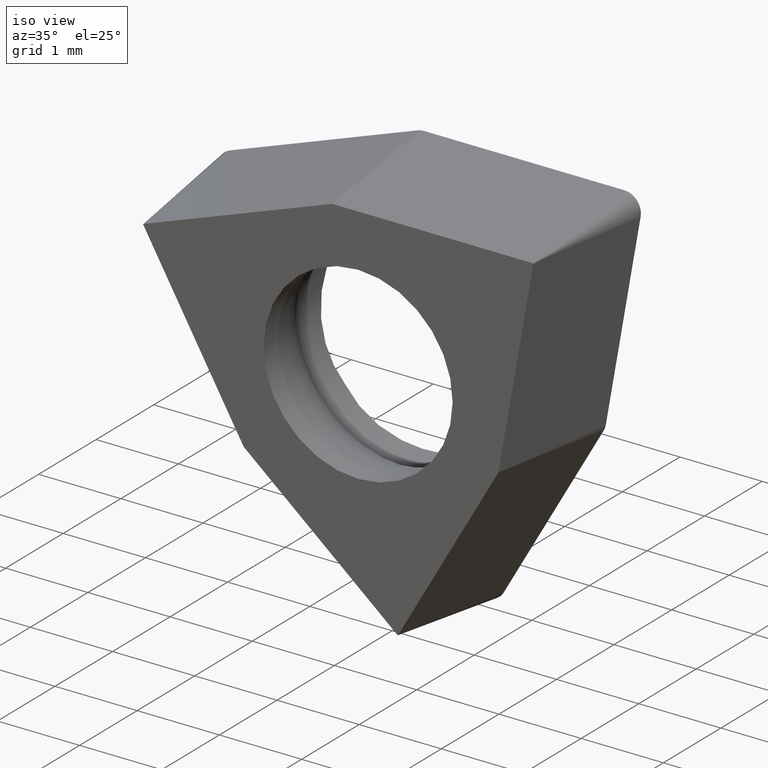
[diagram: clean part render]
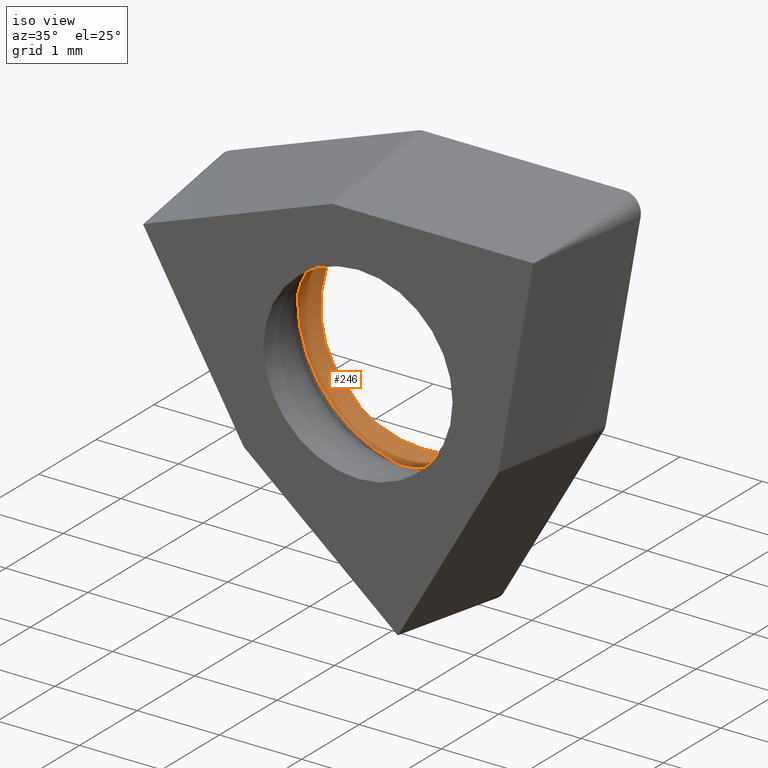
[diagram: same view with one face highlighted and labeled with its STEP entity id]
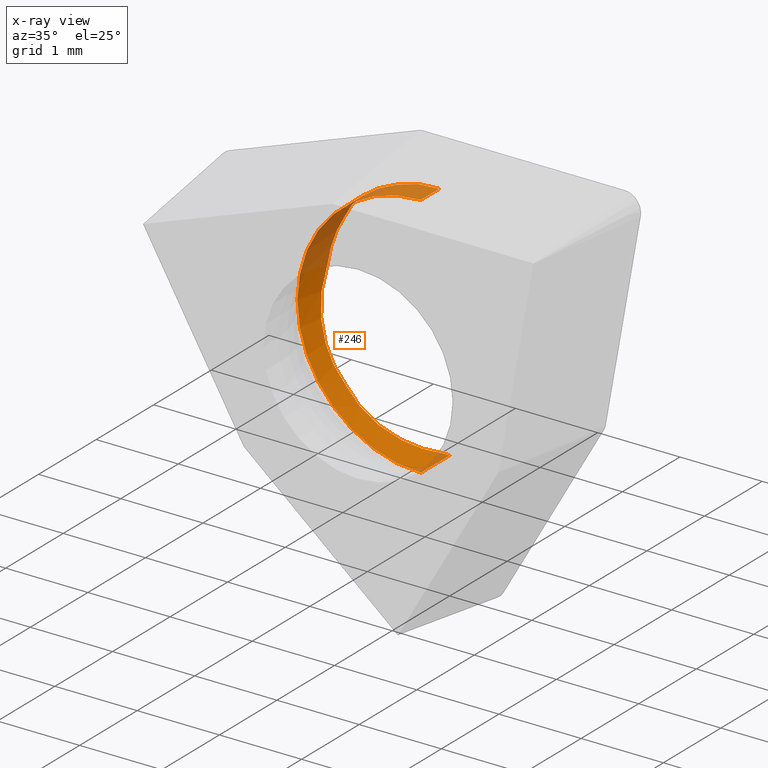
[diagram: x-ray of the same camera — body ghosted, the highlighted face saturated]
A machine part, iso view. The second image highlights one B-rep face of the part: STEP entity #246.
The next image is the same camera in x-ray: the body ghosted, the highlighted face saturated — about 29% of this face is hidden behind the body in this view.
In plain terms, the highlighted cylindrical surface (partial cylindrical patch) has radius 1.5 mm, axis along (-0, 1, -0).
Its self-contained STEP definition (entity closure, byte-faithful):
#9 = VECTOR ( 'NONE', #191, 1000.000000000000000 ) ;
#15 = ORIENTED_EDGE ( 'NONE', *, *, #1044, .T. ) ;
#32 = VERTEX_POINT ( 'NONE', #481 ) ;
#66 = ORIENTED_EDGE ( 'NONE', *, *, #1001, .F. ) ;
#80 = CARTESIAN_POINT ( 'NONE',  ( -0.8727686255998123865, -0.2118027706945935784, -1.293460595228537624 ) ) ;
#88 = CARTESIAN_POINT ( 'NONE',  ( 0.000000000000000000, 1.234325842091266168, 0.000000000000000000 ) ) ;
#96 = CARTESIAN_POINT ( 'NONE',  ( -1.040530444555273881, -0.1521548644329683009, 1.162781913857429572 ) ) ;
#108 = DIRECTION ( 'NONE',  ( -0.000000000000000000, 1.000000000000000000, -0.000000000000000000 ) ) ;
#111 = EDGE_CURVE ( 'NONE', #1238, #32, #607, .T. ) ;
#125 = AXIS2_PLACEMENT_3D ( 'NONE', #88, #889, #388 ) ;
#126 = CARTESIAN_POINT ( 'NONE',  ( -0.2604722665003936788, -0.1687084629627365606, 1.477211629518311975 ) ) ;
#137 = ORIENTED_EDGE ( 'NONE', *, *, #425, .T. ) ;
#140 = VECTOR ( 'NONE', #1054, 1000.000000000000000 ) ;
#176 =( BOUNDED_CURVE ( )  B_SPLINE_CURVE ( 3, ( #859, #80, #1076, #960 ),
 .UNSPECIFIED., .F., .T. ) 
 B_SPLINE_CURVE_WITH_KNOTS ( ( 4, 4 ),
 ( 2.967059728390355922, 3.801579982977294048 ),
 .UNSPECIFIED. ) 
 CURVE ( )  GEOMETRIC_REPRESENTATION_ITEM ( )  RATIONAL_B_SPLINE_CURVE ( ( 1.000000000000000000, 0.9428018156119951643, 0.9428018156119951643, 1.000000000000000000 ) ) 
 REPRESENTATION_ITEM ( '' )  );
#191 = DIRECTION ( 'NONE',  ( -0.000000000000000000, 1.000000000000000000, -0.000000000000000000 ) ) ;
#192 = DIRECTION ( 'NONE',  ( 0.000000000000000000, 0.000000000000000000, 1.000000000000000000 ) ) ;
#200 = ORIENTED_EDGE ( 'NONE', *, *, #111, .F. ) ;
#215 = DIRECTION ( 'NONE',  ( 0.000000000000000000, 0.000000000000000000, 1.000000000000000000 ) ) ;
#246 = ADVANCED_FACE ( 'NONE', ( #587 ), #984, .F. ) ;
#276 = CARTESIAN_POINT ( 'NONE',  ( 1.836970198721029441E-16, 1.234325842091266168, -1.499999999999999556 ) ) ;
#288 = CIRCLE ( 'NONE', #962, 1.499999999999999778 ) ;
#324 = CARTESIAN_POINT ( 'NONE',  ( 0.000000000000000000, -2.168404344971008868E-16, 0.000000000000000000 ) ) ;
#349 = AXIS2_PLACEMENT_3D ( 'NONE', #324, #821, #215 ) ;
#358 =( BOUNDED_CURVE ( )  B_SPLINE_CURVE ( 3, ( #933, #749, #627, #126 ),
 .UNSPECIFIED., .F., .T. ) 
 B_SPLINE_CURVE_WITH_KNOTS ( ( 4, 4 ),
 ( 3.141592653589793116, 3.316125578789224981 ),
 .UNSPECIFIED. ) 
 CURVE ( )  GEOMETRIC_REPRESENTATION_ITEM ( )  RATIONAL_B_SPLINE_CURVE ( ( 1.000000000000000000, 0.9974631320611636598, 0.9974631320611636598, 1.000000000000000000 ) ) 
 REPRESENTATION_ITEM ( '' )  );
#366 = ORIENTED_EDGE ( 'NONE', *, *, #755, .F. ) ;
#388 = DIRECTION ( 'NONE',  ( 0.000000000000000000, 0.000000000000000000, 1.000000000000000000 ) ) ;
#415 = EDGE_CURVE ( 'NONE', #1140, #849, #176, .T. ) ;
#420 = CARTESIAN_POINT ( 'NONE',  ( -0.2604722665003936788, -0.1687084629627365606, 1.477211629518311975 ) ) ;
#425 = EDGE_CURVE ( 'NONE', #823, #1022, #288, .T. ) ;
#457 = EDGE_LOOP ( 'NONE', ( #200, #15, #534, #891, #545, #137, #66, #366, #1045 ) ) ;
#474 = CARTESIAN_POINT ( 'NONE',  ( 0.000000000000000000, -2.168404344971008868E-16, 0.000000000000000000 ) ) ;
#481 = CARTESIAN_POINT ( 'NONE',  ( 0.000000000000000000, -0.5000000000000000000, 1.499999999999999556 ) ) ;
#486 = DIRECTION ( 'NONE',  ( -0.000000000000000000, 1.000000000000000000, -0.000000000000000000 ) ) ;
#503 = CARTESIAN_POINT ( 'NONE',  ( -1.269491832948601573, 0.000000000000000000, 0.7989934205466265871 ) ) ;
#524 = CARTESIAN_POINT ( 'NONE',  ( 1.836970198721029934E-16, -2.168404344971008868E-16, -1.500000000000000000 ) ) ;
#531 = CARTESIAN_POINT ( 'NONE',  ( -1.486070235163639008, 0.000000000000000000, 0.2039491509192579155 ) ) ;
#534 = ORIENTED_EDGE ( 'NONE', *, *, #1234, .T. ) ;
#545 = ORIENTED_EDGE ( 'NONE', *, *, #678, .F. ) ;
#548 = AXIS2_PLACEMENT_3D ( 'NONE', #1291, #108, #192 ) ;
#566 = VERTEX_POINT ( 'NONE', #1298 ) ;
#587 = FACE_OUTER_BOUND ( 'NONE', #457, .T. ) ;
#589 = CARTESIAN_POINT ( 'NONE',  ( -0.05720268317569945221, 0.000000000000000000, -1.498908887503673348 ) ) ;
#598 = CARTESIAN_POINT ( 'NONE',  ( 1.836970198721029441E-16, -0.5000000000000000000, -1.499999999999999556 ) ) ;
#607 = CIRCLE ( 'NONE', #548, 1.499999999999999556 ) ;
#627 = CARTESIAN_POINT ( 'NONE',  ( -0.1744223179673907165, -0.1774685568056187102, 1.492384557133255463 ) ) ;
#656 = CARTESIAN_POINT ( 'NONE',  ( 0.000000000000000000, 1.234325842091266168, 1.499999999999999556 ) ) ;
#678 = EDGE_CURVE ( 'NONE', #823, #1140, #1251, .T. ) ;
#681 = CARTESIAN_POINT ( 'NONE',  ( -1.149066664678476624, -0.1687084629627366994, -0.9641814145297975536 ) ) ;
#690 = LINE ( 'NONE', #656, #140 ) ;
#704 = CARTESIAN_POINT ( 'NONE',  ( -1.269491832948601573, 0.000000000000000000, 0.7989934205466265871 ) ) ;
#729 = VERTEX_POINT ( 'NONE', #524 ) ;
#749 = CARTESIAN_POINT ( 'NONE',  ( -0.08737740769180900313, -0.1818653347947317978, 1.499999999999999778 ) ) ;
#753 = CARTESIAN_POINT ( 'NONE',  ( -1.486070235163639008, 0.000000000000000000, 0.2039491509192579155 ) ) ;
#755 = EDGE_CURVE ( 'NONE', #776, #566, #358, .T. ) ;
#765 = DIRECTION ( 'NONE',  ( 0.000000000000000000, 0.000000000000000000, 1.000000000000000000 ) ) ;
#776 = VERTEX_POINT ( 'NONE', #1018 ) ;
#821 = DIRECTION ( 'NONE',  ( -0.000000000000000000, 1.000000000000000000, -0.000000000000000000 ) ) ;
#823 = VERTEX_POINT ( 'NONE', #753 ) ;
#831 = CARTESIAN_POINT ( 'NONE',  ( -1.425364703757135976, -0.2118027706945900812, -0.6349022338310624791 ) ) ;
#849 = VERTEX_POINT ( 'NONE', #589 ) ;
#859 = CARTESIAN_POINT ( 'NONE',  ( -1.149066664678476624, -0.1687084629627366994, -0.9641814145297975536 ) ) ;
#889 = DIRECTION ( 'NONE',  ( -0.000000000000000000, 1.000000000000000000, -0.000000000000000000 ) ) ;
#891 = ORIENTED_EDGE ( 'NONE', *, *, #415, .F. ) ;
#907 = EDGE_CURVE ( 'NONE', #32, #776, #690, .T. ) ;
#915 = CARTESIAN_POINT ( 'NONE',  ( -1.544514371942845576, -0.1521548644329672184, -0.2219025464079635024 ) ) ;
#933 = CARTESIAN_POINT ( 'NONE',  ( 0.000000000000000000, -0.1818653347947318810, 1.499999999999999556 ) ) ;
#960 = CARTESIAN_POINT ( 'NONE',  ( -0.05720268317569945221, 0.000000000000000000, -1.498908887503673348 ) ) ;
#962 = AXIS2_PLACEMENT_3D ( 'NONE', #474, #486, #765 ) ;
#984 = CYLINDRICAL_SURFACE ( 'NONE', #125, 1.499999999999999556 ) ;
#991 = CARTESIAN_POINT ( 'NONE',  ( -0.6837854214621553739, -0.2118027706945910249, 1.402570099009730509 ) ) ;
#1001 = EDGE_CURVE ( 'NONE', #566, #1022, #1037, .T. ) ;
#1018 = CARTESIAN_POINT ( 'NONE',  ( 0.000000000000000000, -0.1818653347947318810, 1.499999999999999556 ) ) ;
#1022 = VERTEX_POINT ( 'NONE', #704 ) ;
#1037 =( BOUNDED_CURVE ( )  B_SPLINE_CURVE ( 3, ( #420, #991, #96, #503 ),
 .UNSPECIFIED., .F., .T. ) 
 B_SPLINE_CURVE_WITH_KNOTS ( ( 4, 4 ),
 ( 2.967059728390363915, 3.801579982977291827 ),
 .UNSPECIFIED. ) 
 CURVE ( )  GEOMETRIC_REPRESENTATION_ITEM ( )  RATIONAL_B_SPLINE_CURVE ( ( 1.000000000000000000, 0.9428018156119964965, 0.9428018156119964965, 1.000000000000000000 ) ) 
 REPRESENTATION_ITEM ( '' )  );
#1044 = EDGE_CURVE ( 'NONE', #1238, #729, #1091, .T. ) ;
#1045 = ORIENTED_EDGE ( 'NONE', *, *, #907, .F. ) ;
#1054 = DIRECTION ( 'NONE',  ( -0.000000000000000000, 1.000000000000000000, -0.000000000000000000 ) ) ;
#1076 = CARTESIAN_POINT ( 'NONE',  ( -0.4867334541839896112, -0.1521548644329705213, -1.482516755324697177 ) ) ;
#1091 = LINE ( 'NONE', #276, #9 ) ;
#1120 = CARTESIAN_POINT ( 'NONE',  ( -1.149066664678476624, -0.1687084629627366994, -0.9641814145297975536 ) ) ;
#1140 = VERTEX_POINT ( 'NONE', #681 ) ;
#1234 = EDGE_CURVE ( 'NONE', #729, #849, #1249, .T. ) ;
#1238 = VERTEX_POINT ( 'NONE', #598 ) ;
#1249 = CIRCLE ( 'NONE', #349, 1.499999999999999778 ) ;
#1251 =( BOUNDED_CURVE ( )  B_SPLINE_CURVE ( 3, ( #531, #915, #831, #1120 ),
 .UNSPECIFIED., .F., .T. ) 
 B_SPLINE_CURVE_WITH_KNOTS ( ( 4, 4 ),
 ( 2.481605324202295293, 3.316125578789219652 ),
 .UNSPECIFIED. ) 
 CURVE ( )  GEOMETRIC_REPRESENTATION_ITEM ( )  RATIONAL_B_SPLINE_CURVE ( ( 1.000000000000000000, 0.9428018156119970516, 0.9428018156119970516, 1.000000000000000000 ) ) 
 REPRESENTATION_ITEM ( '' )  );
#1291 = CARTESIAN_POINT ( 'NONE',  ( 0.000000000000000000, -0.5000000000000000000, 0.000000000000000000 ) ) ;
#1298 = CARTESIAN_POINT ( 'NONE',  ( -0.2604722665003936788, -0.1687084629627365606, 1.477211629518311975 ) ) ;